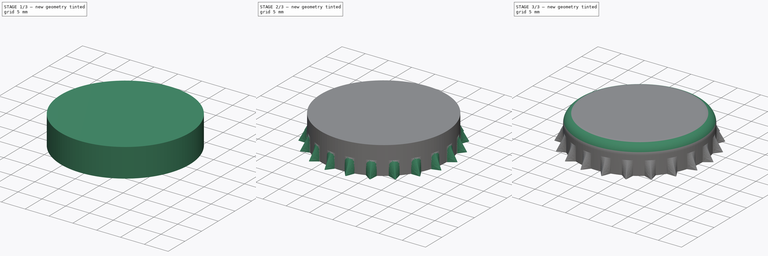
[diagram: build sequence overview — one tinted view per stage of 3, left to right]
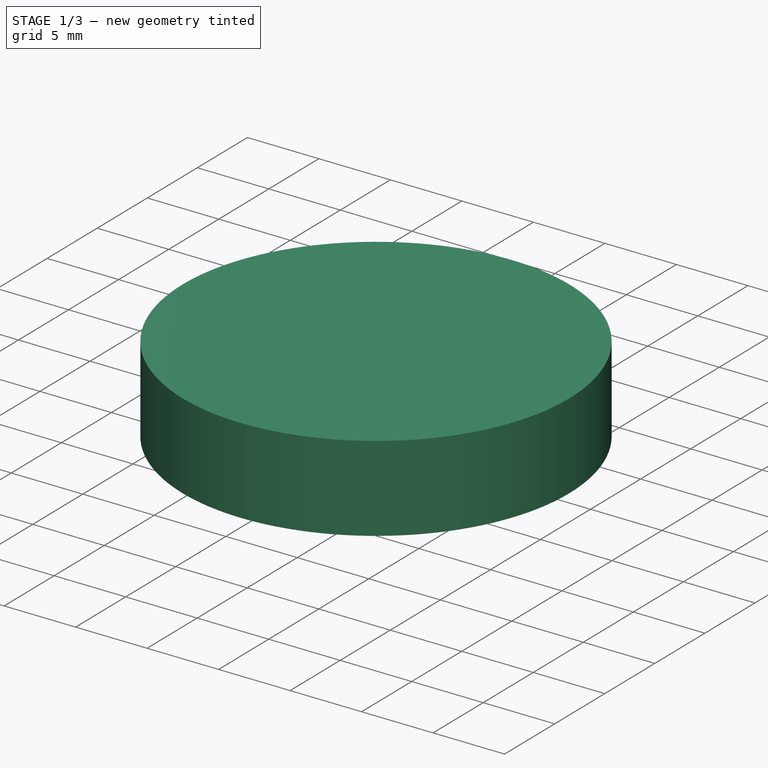
[diagram: stage 1 of 3 — iso view after this stage's code; geometry added in this stage tinted green]
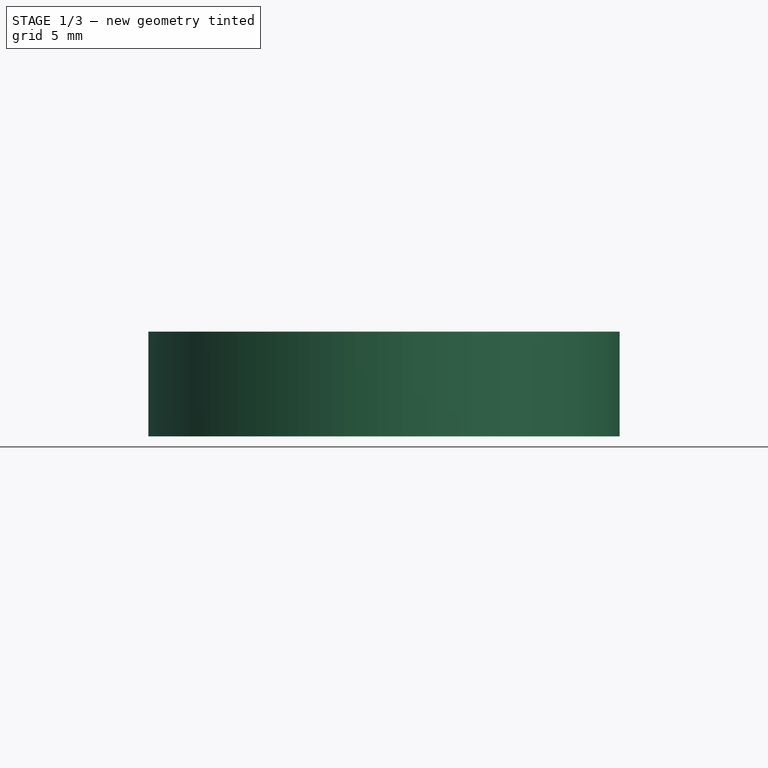
[diagram: stage 1 of 3 — front view after this stage's code; geometry added in this stage tinted green]
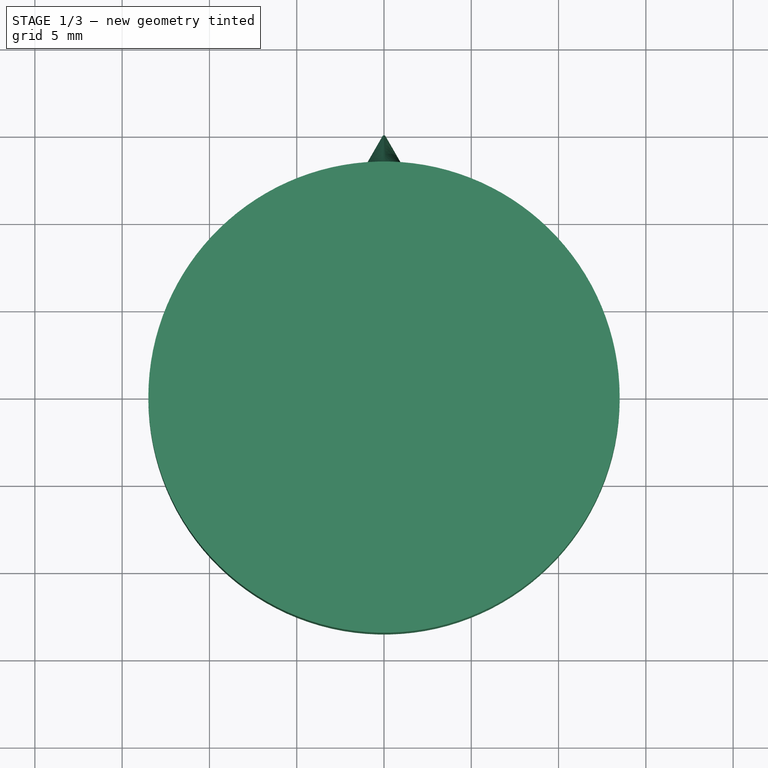
[diagram: stage 1 of 3 — top view after this stage's code; geometry added in this stage tinted green]
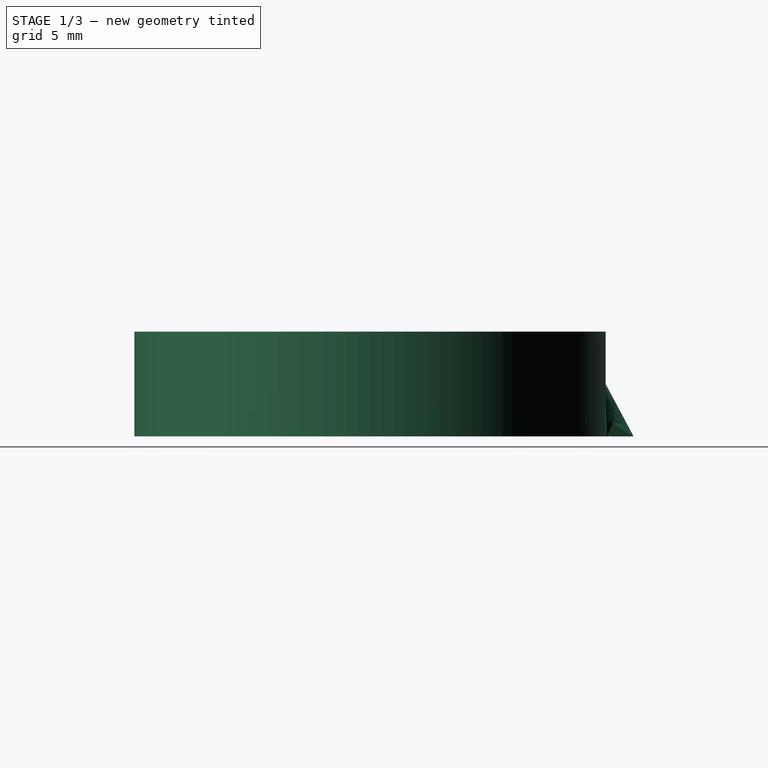
[diagram: stage 1 of 3 — right view after this stage's code; geometry added in this stage tinted green]
FCSTD DOCUMENT  (FreeCAD 0.18R13524 (Git))
Label: TAMPA GARRAFA - BOTTLE CAP
License: All rights reserved
LicenseURL: http://en.wikipedia.org/wiki/All_rights_reserved
objects: Sketcher::SketchObject×2, PartDesign::Body×1, Part::Loft×1, Part::FeaturePython×1, Part::Cylinder×1, Part::MultiFuse×1, Part::Fillet×1, Part::Feature×1
note: 9 computed .brp shape members not serialized (recipe doc carries the construction recipe); baked Part::Feature solids carry a one-line shape summary decoded from their .brp

FEATURE [Sketcher::SketchObject] Sketch
  MapMode = 5
  Support = -> [XY_Plane]
  sketch-geometry (6):
    g0: LineSegment StartX=-1 StartY=13.4629 StartZ=0 EndX=-0.0866712 EndY=15.0499 EndZ=0
    g1: ArcOfCircle CenterX=0 CenterY=15 CenterZ=0 NormalX=0 NormalY=0 NormalZ=1 AngleXU=0 Radius=0.1 StartAngle=0.522223 EndAngle=2.61937
    g2: LineSegment StartX=0.0866712 StartY=15.0499 StartZ=0 EndX=1 EndY=13.4629 EndZ=0
    g3: LineSegment StartX=1 StartY=13.4629 StartZ=0 EndX=0 EndY=0 EndZ=0
    g4: LineSegment StartX=0 StartY=0 StartZ=0 EndX=-1 EndY=13.4629 EndZ=0
    g5: ArcOfCircle [constr] CenterX=0 CenterY=0 CenterZ=0 NormalX=0 NormalY=0 NormalZ=1 AngleXU=0 Radius=13.5 StartAngle=1.57016 EndAngle=1.64494
  constraints (14):
    c: Tangent(g0,g1) = 1.5708
    c: Tangent(g1,g2) = 1.5708
    c: Coincident(g2,g3)
    c: Coincident(g3,g-1)
    c: Coincident(g3,g4)
    c: Coincident(g4,g0)
    c: Symmetric(g0,g2,g-2)
    c: PointOnObject(g1,g-2)
    c: Radius(g1) = 0.1
    c: DistanceX(g0,g2) = 2
    c: Coincident(g5,g-1)
    c: Coincident(g5,g0)
    c: Radius(g5) = 13.5
    c: DistanceY(g-1,g1) = 15
FEATURE [Sketcher::SketchObject] Sketch001
  AttachmentOffset = pos=(0,0,3) rot=(0,0,1;0rad)
  MapMode = 5
  Placement = pos=(0,0,3) rot=(0,0,1;0rad)
  Support = -> [XY_Plane]
  sketch-geometry (3):
    g0: LineSegment StartX=-1 StartY=13.4629 StartZ=0 EndX=0 EndY=0 EndZ=0
    g1: LineSegment StartX=0 StartY=0 StartZ=0 EndX=1 EndY=13.4629 EndZ=0
    g2: ArcOfCircle CenterX=0 CenterY=0 CenterZ=0 NormalX=0 NormalY=0 NormalZ=1 AngleXU=0 Radius=13.5 StartAngle=1.49665 EndAngle=1.64494
  constraints (8):
    c: Coincident(g0,g-1)
    c: Coincident(g0,g1)
    c: Coincident(g2,g-1)
    c: Radius(g2) = 13.5
    c: Coincident(g0,g2)
    c: Coincident(g1,g2)
    c: Symmetric(g0,g1,g-2)
    c: DistanceX(g0,g1) = 2
FEATURE [PartDesign::Body] Body
  Group = -> [Sketch,Sketch001]
  Origin = -> Origin
FEATURE [Part::Loft] Loft
  Closed = false
  MaxDegree = 5
  Ruled = true
  Sections = -> [Sketch,Sketch001]
  Solid = true
FEATURE [Part::Cylinder] Cylinder
  Angle = 360
  AttacherType = Attacher::AttachEngine3D
  Height = 6
  Radius = 13.5
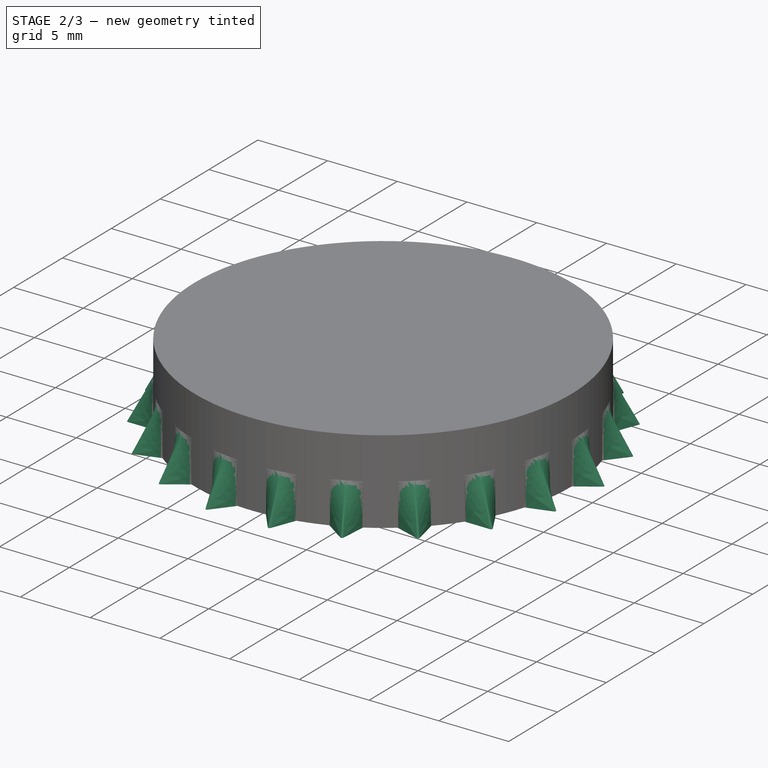
[diagram: stage 2 of 3 — iso view after this stage's code; geometry added in this stage tinted green]
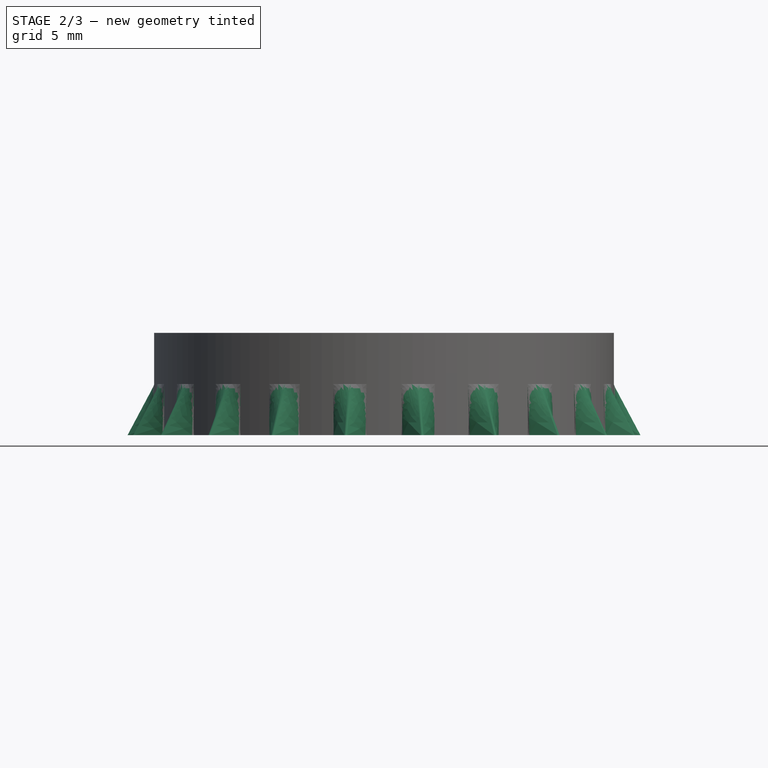
[diagram: stage 2 of 3 — front view after this stage's code; geometry added in this stage tinted green]
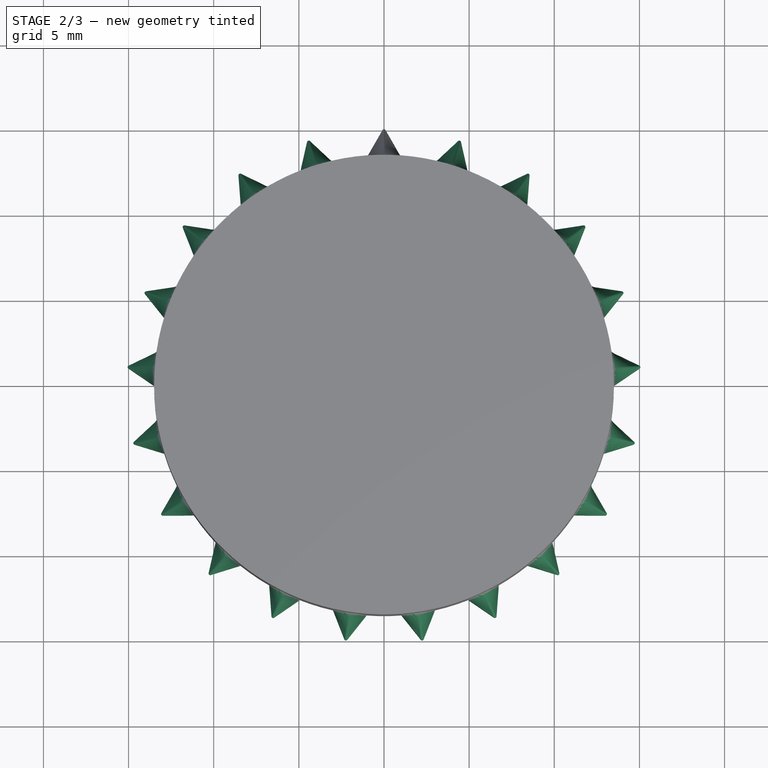
[diagram: stage 2 of 3 — top view after this stage's code; geometry added in this stage tinted green]
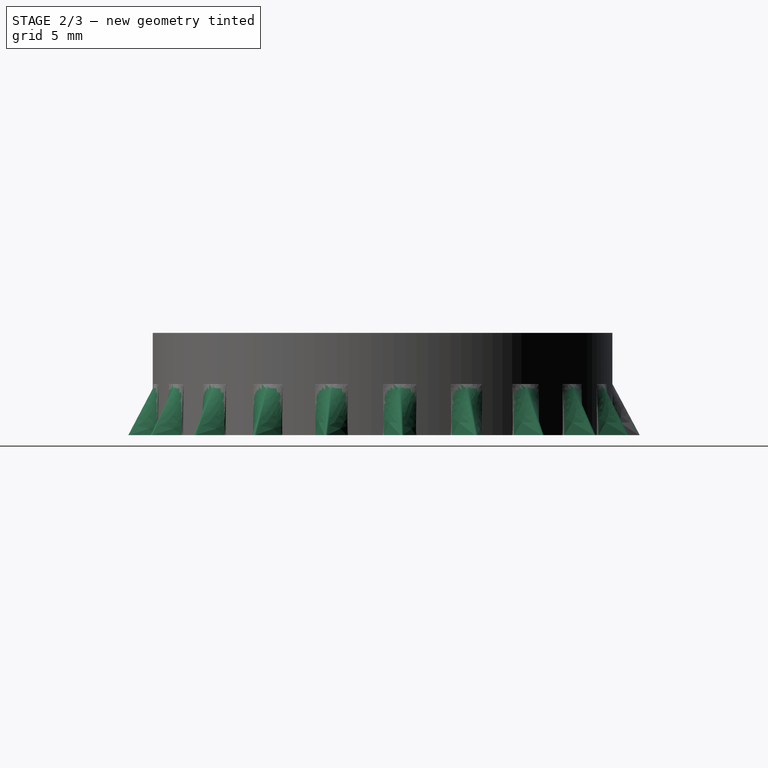
[diagram: stage 2 of 3 — right view after this stage's code; geometry added in this stage tinted green]
FEATURE [Part::FeaturePython] Array  # Draft array (typed FeaturePython)
  Angle = 360
  ArrayType = 1
  Axis = (0,0,1)
  Base = -> Loft
  Center = (0,0,0)
  Fuse = false
  IntervalAxis = (0,0,0)
  IntervalX = (1,0,0)
  IntervalY = (0,1,0)
  IntervalZ = (0,0,0)
  NumberPolar = 21
  NumberX = 2
  NumberY = 2
  NumberZ = 1
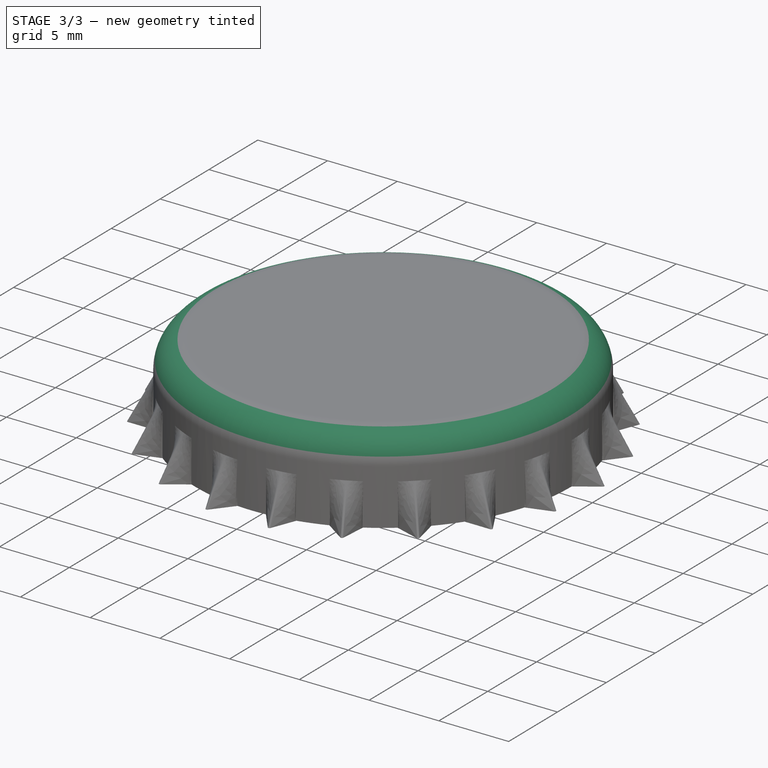
[diagram: stage 3 of 3 — iso view after this stage's code; geometry added in this stage tinted green]
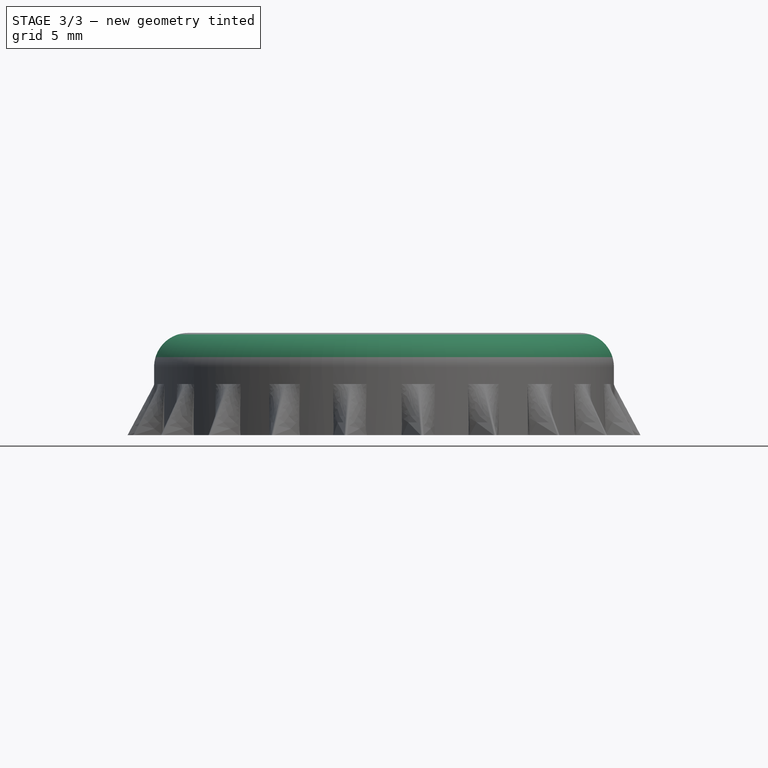
[diagram: stage 3 of 3 — front view after this stage's code; geometry added in this stage tinted green]
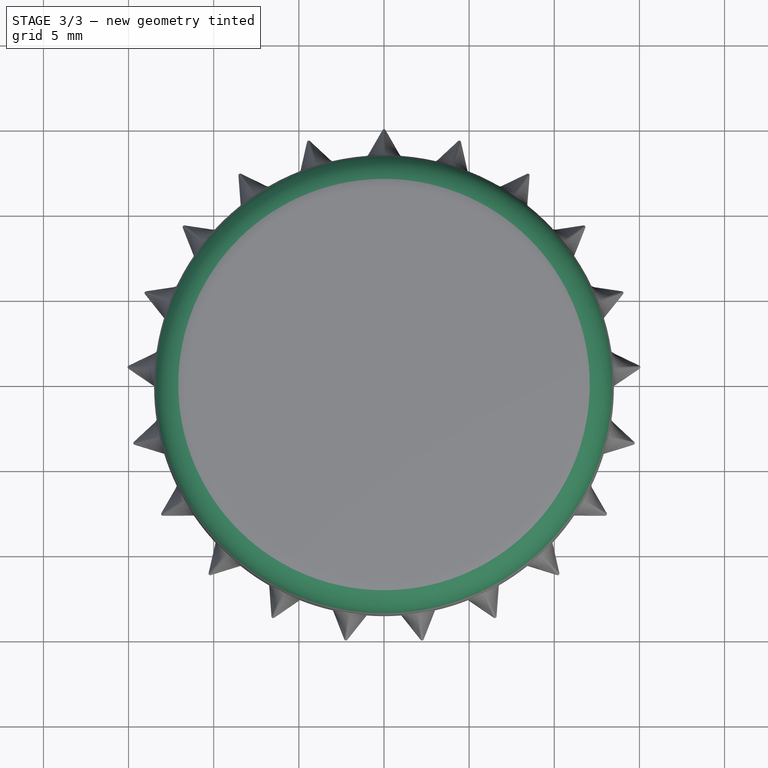
[diagram: stage 3 of 3 — top view after this stage's code; geometry added in this stage tinted green]
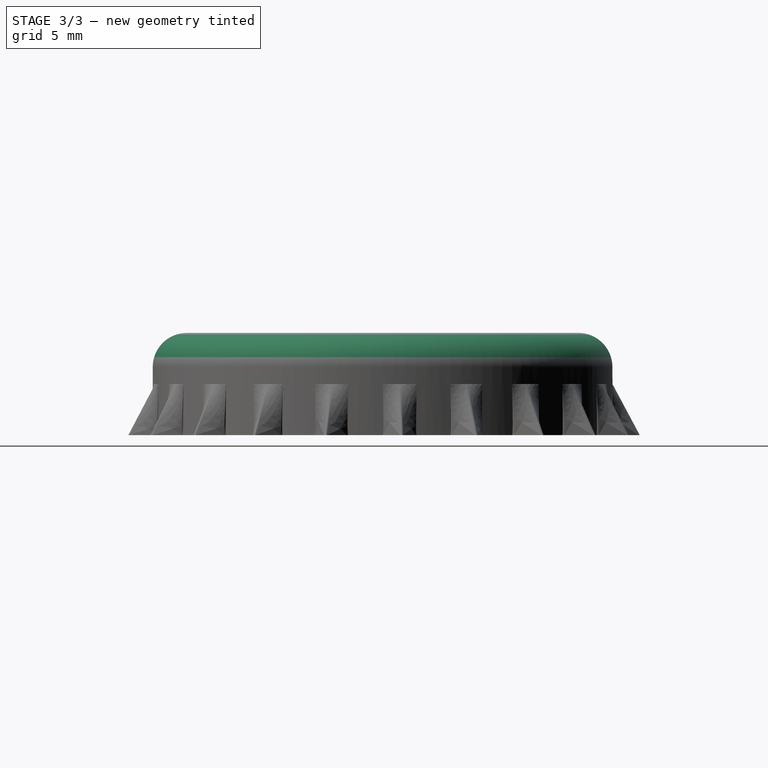
[diagram: stage 3 of 3 — right view after this stage's code; geometry added in this stage tinted green]
FEATURE [Part::MultiFuse] Fusion
  Shapes = -> [Array,Cylinder]
FEATURE [Part::Fillet] Fillet
  Base = -> Fusion
  Edges = 1 edges r=2: [Edge1]
FEATURE [Part::Feature] Fillet001
  shape: bbox 30.13 x 30.05 x 6 mm, 109 faces (baked)
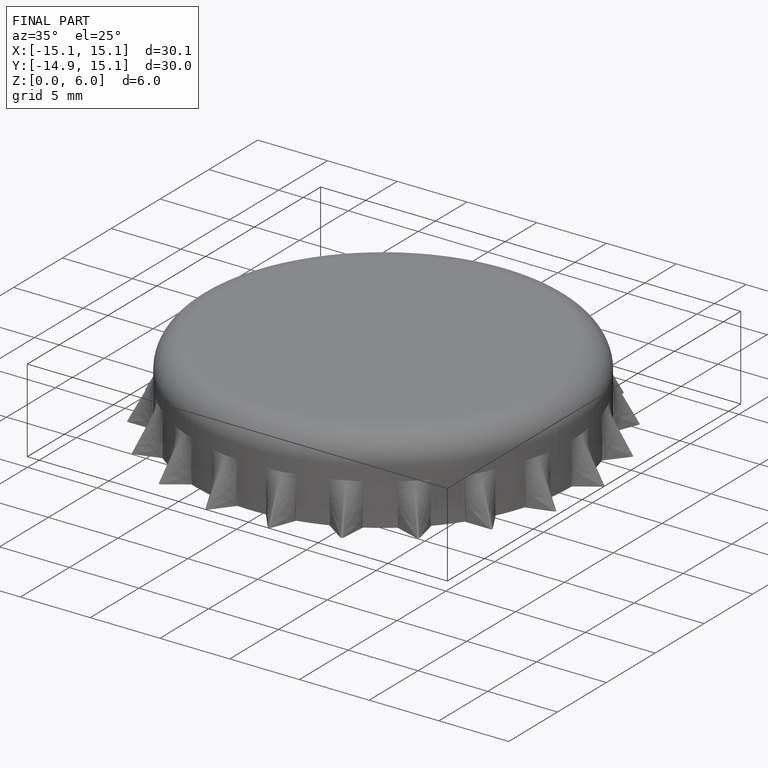
[diagram: finished part — iso view with bounding-box wireframe]
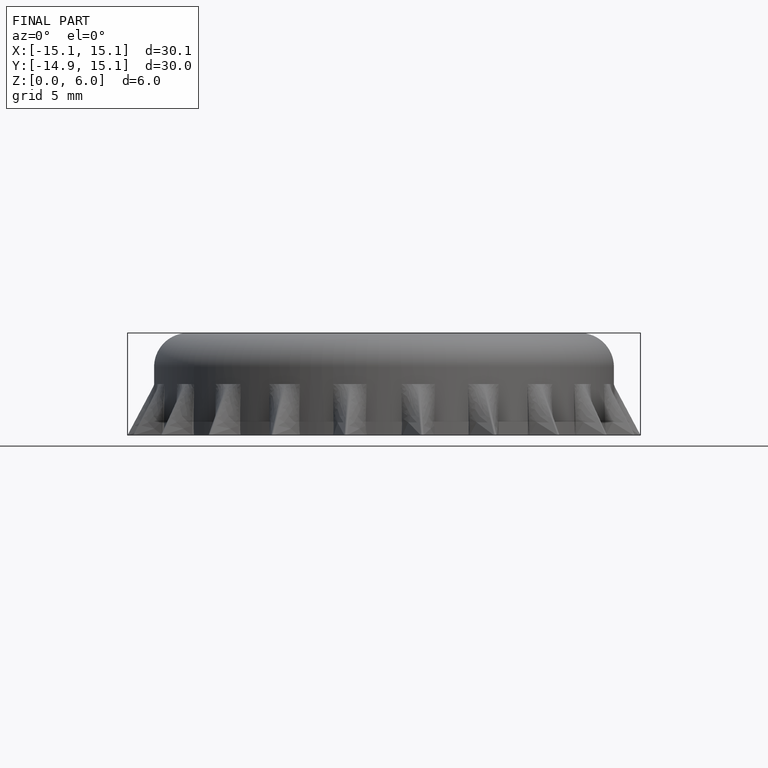
[diagram: finished part — front view with bounding-box wireframe]
